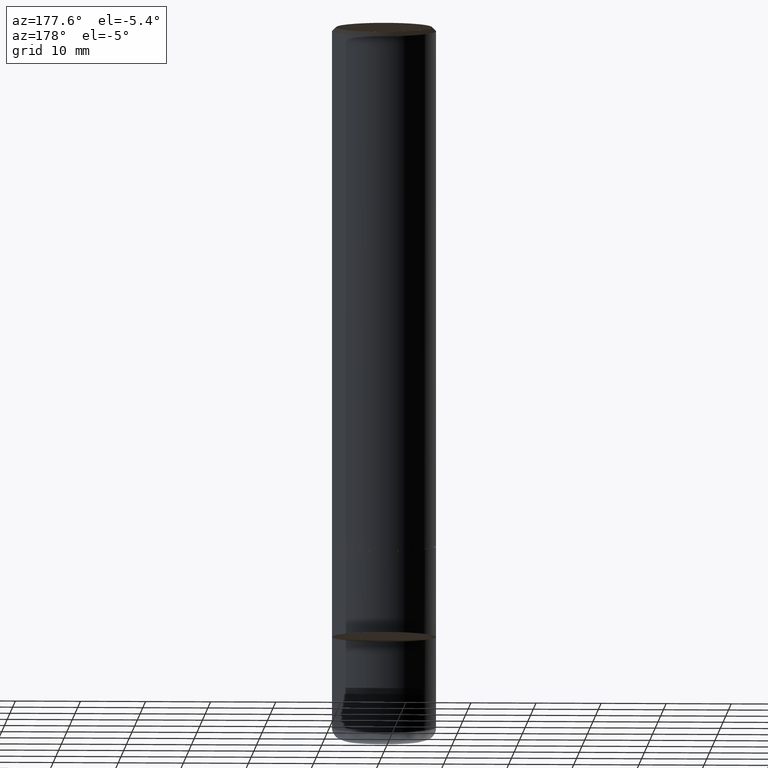
[diagram: clean part render]
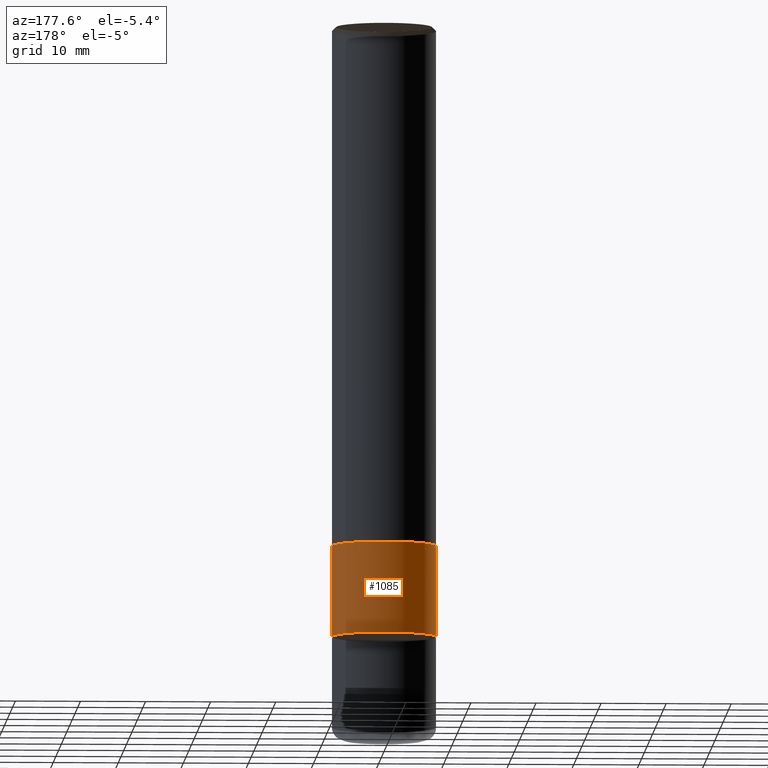
[diagram: same view with one face highlighted and labeled with its STEP entity id]
A machine part, auxiliary view. The second image highlights one B-rep face of the part: STEP entity #1085.
In plain terms, the highlighted face is a freeform B-spline surface patch.
Its self-contained STEP definition (entity closure, byte-faithful):
#846=CARTESIAN_POINT('',(8.0,0.0,-14.0));
#847=CARTESIAN_POINT('',(8.0,8.0,-14.0));
#848=CARTESIAN_POINT('',(0.0,8.0,-14.0));
#849=CARTESIAN_POINT('',(-8.0,8.0,-14.0));
#850=CARTESIAN_POINT('',(-8.0,0.0,-14.0));
#870=CARTESIAN_POINT('',(8.0,0.0,0.0));
#871=CARTESIAN_POINT('',(8.0,8.0,0.0));
#872=CARTESIAN_POINT('',(0.0,8.0,0.0));
#873=CARTESIAN_POINT('',(-8.0,8.0,0.0));
#874=CARTESIAN_POINT('',(-8.0,0.0,0.0));
#1066=(
BOUNDED_SURFACE()
B_SPLINE_SURFACE(1,2,(
(#846,#847,#848,#849,#850),
(#870,#871,#872,#873,#874)
), .UNSPECIFIED.,.F.,.F.,.F.)
B_SPLINE_SURFACE_WITH_KNOTS((2,2),(3,2,3),(
0.0,1.0),(
0.0,0.5,1.0), .UNSPECIFIED.)
GEOMETRIC_REPRESENTATION_ITEM()
RATIONAL_B_SPLINE_SURFACE(((1.0,0.707106781187,1.0,0.707106781187,1.0),
(1.0,0.707106781187,1.0,0.707106781187,1.0)
))
REPRESENTATION_ITEM('')
SURFACE()
);
#1067=(
BOUNDED_CURVE()
B_SPLINE_CURVE(2,(#870,#871,#872,#873,#874),.UNSPECIFIED.,.F.,.F.)
B_SPLINE_CURVE_WITH_KNOTS((3,2,3),
(0.0,0.5,1.0),.UNSPECIFIED.)
CURVE()
GEOMETRIC_REPRESENTATION_ITEM()
RATIONAL_B_SPLINE_CURVE((1.0,0.707106781187,1.0,0.707106781187,1.0))
REPRESENTATION_ITEM('')
);
#1068=(
BOUNDED_CURVE()
B_SPLINE_CURVE(1,(#874,#850),.UNSPECIFIED.,.F.,.F.)
B_SPLINE_CURVE_WITH_KNOTS((2,2),
(0.0,1.0),.UNSPECIFIED.)
CURVE()
GEOMETRIC_REPRESENTATION_ITEM()
RATIONAL_B_SPLINE_CURVE((1.0,1.0))
REPRESENTATION_ITEM('')
);
#1069=(
BOUNDED_CURVE()
B_SPLINE_CURVE(2,(#850,#849,#848,#847,#846),.UNSPECIFIED.,.F.,.F.)
B_SPLINE_CURVE_WITH_KNOTS((3,2,3),
(0.0,0.5,1.0),.UNSPECIFIED.)
CURVE()
GEOMETRIC_REPRESENTATION_ITEM()
RATIONAL_B_SPLINE_CURVE((1.0,0.707106781187,1.0,0.707106781187,1.0))
REPRESENTATION_ITEM('')
);
#1070=(
BOUNDED_CURVE()
B_SPLINE_CURVE(1,(#846,#870),.UNSPECIFIED.,.F.,.F.)
B_SPLINE_CURVE_WITH_KNOTS((2,2),
(0.0,1.0),.UNSPECIFIED.)
CURVE()
GEOMETRIC_REPRESENTATION_ITEM()
RATIONAL_B_SPLINE_CURVE((1.0,1.0))
REPRESENTATION_ITEM('')
);
#1071=VERTEX_POINT('',#846);
#1072=VERTEX_POINT('',#850);
#1073=VERTEX_POINT('',#870);
#1074=VERTEX_POINT('',#874);
#1075=EDGE_CURVE('',#1073,#1074,#1067,.T.);
#1076=EDGE_CURVE('',#1074,#1072,#1068,.T.);
#1077=EDGE_CURVE('',#1072,#1071,#1069,.T.);
#1078=EDGE_CURVE('',#1071,#1073,#1070,.T.);
#1079=ORIENTED_EDGE('',*,*,#1075,.T.);
#1080=ORIENTED_EDGE('',*,*,#1076,.T.);
#1081=ORIENTED_EDGE('',*,*,#1077,.T.);
#1082=ORIENTED_EDGE('',*,*,#1078,.T.);
#1083=EDGE_LOOP('',(#1079,#1080,#1081,#1082));
#1084=FACE_OUTER_BOUND('',#1083,.T.);
#1085=ADVANCED_FACE('',(#1084),#1066,.T.);